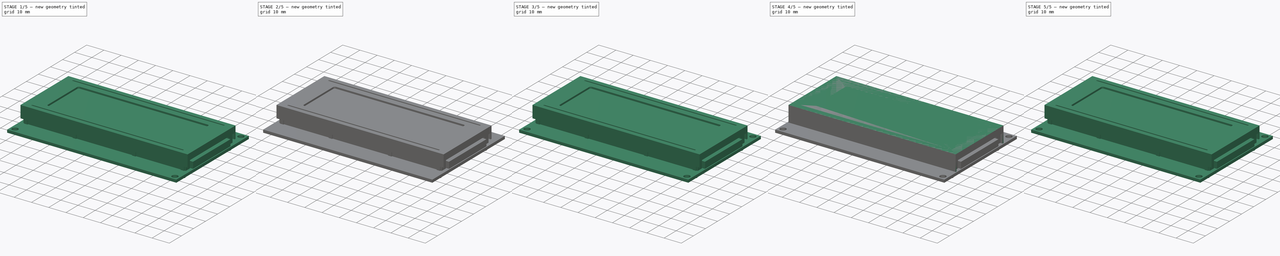
[diagram: build sequence overview — one tinted view per stage of 5, left to right]
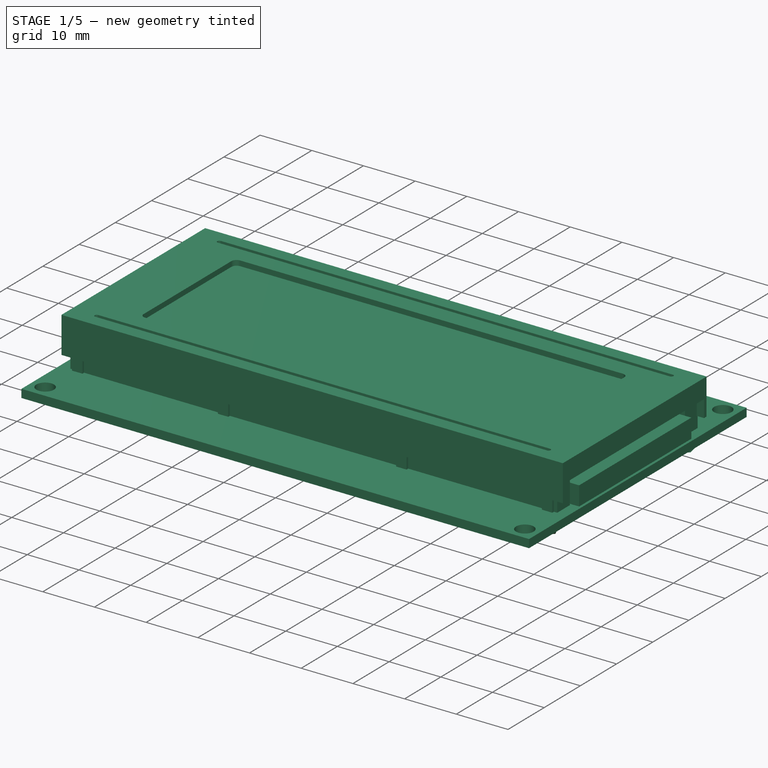
[diagram: stage 1 of 5 — iso view after this stage's code; geometry added in this stage tinted green]
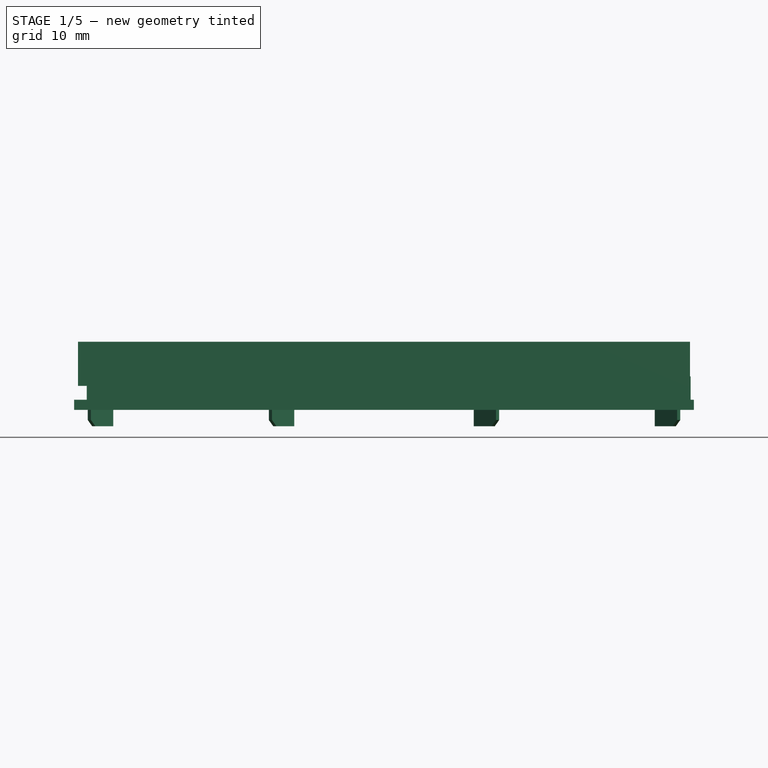
[diagram: stage 1 of 5 — front view after this stage's code; geometry added in this stage tinted green]
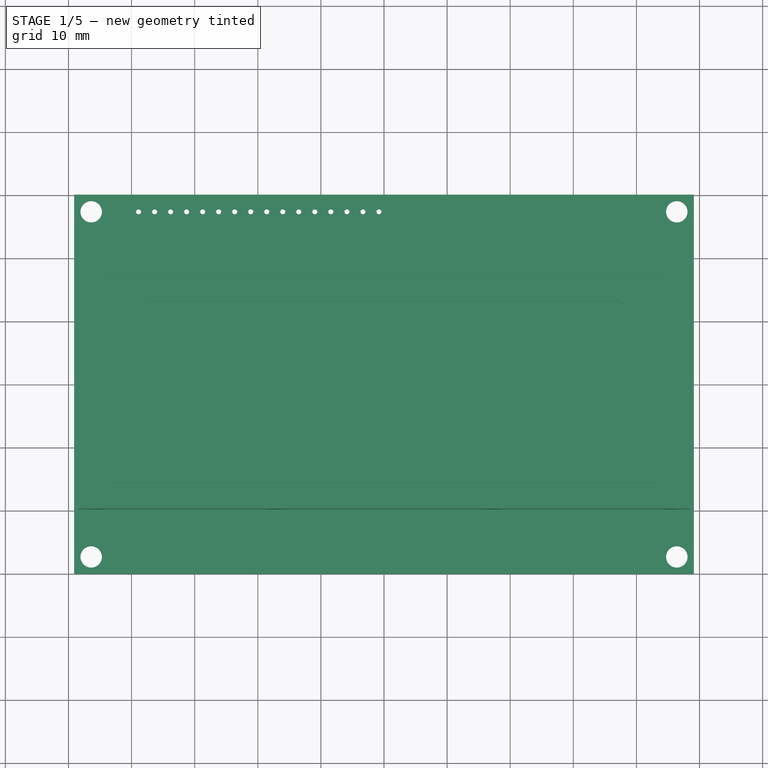
[diagram: stage 1 of 5 — top view after this stage's code; geometry added in this stage tinted green]
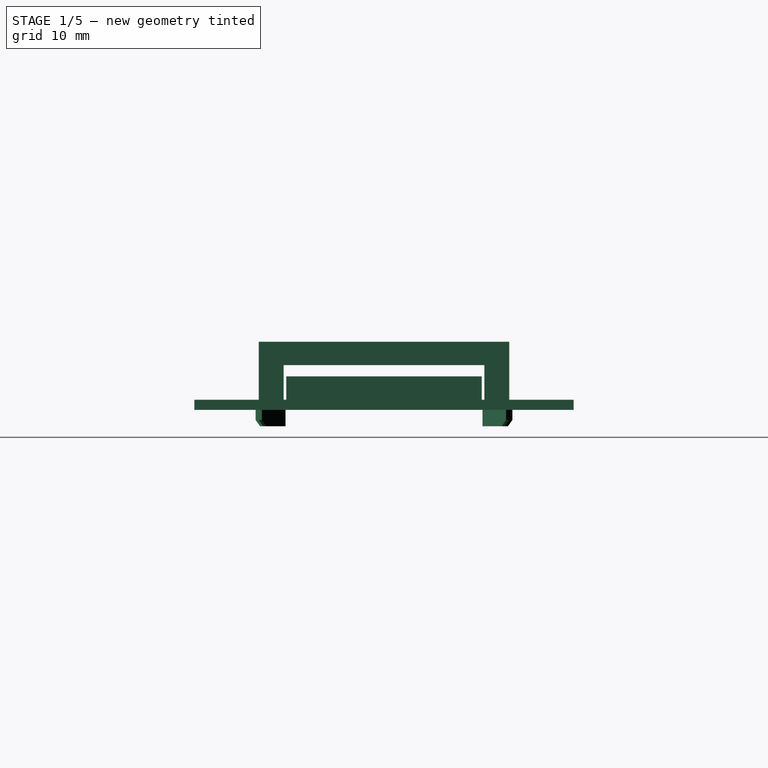
[diagram: stage 1 of 5 — right view after this stage's code; geometry added in this stage tinted green]
FCSTD DOCUMENT  (FreeCAD 0.14R3702 (Git))
Label: lcd-4x20-backlight
License: CC-BY 3.0
LicenseURL: http://creativecommons.org/licenses/by/3.0/
objects: Sketcher::SketchObject×14, Part::Feature×10, PartDesign::Pocket×8, PartDesign::Pad×6, App::DocumentObjectGroup×6, Part::MultiFuse×2, PartDesign::LinearPattern×1, Part::Mirroring×1, Part::Compound×1
note: 57 computed .brp shape members not serialized (recipe doc carries the construction recipe); baked Part::Feature solids carry a one-line shape summary decoded from their .brp

FEATURE [Sketcher::SketchObject] Sketch  label="frame-support-sketch"
  sketch-geometry (8):
    g0: LineSegment StartX=-47.1 StartY=19.4 StartZ=0 EndX=47.1 EndY=19.4 EndZ=0
    g1: LineSegment StartX=47.1 StartY=19.4 StartZ=0 EndX=47.1 EndY=15.9 EndZ=0
    g2: LineSegment StartX=47.1 StartY=15.9 StartZ=0 EndX=-47.1 EndY=15.9 EndZ=0
    g3: LineSegment StartX=-47.1 StartY=15.9 StartZ=0 EndX=-47.1 EndY=19.4 EndZ=0
    g4: LineSegment StartX=-47.1 StartY=-19.4 StartZ=0 EndX=47.1 EndY=-19.4 EndZ=0
    g5: LineSegment StartX=47.1 StartY=-19.4 StartZ=0 EndX=47.1 EndY=-15.9 EndZ=0
    g6: LineSegment StartX=47.1 StartY=-15.9 StartZ=0 EndX=-47.1 EndY=-15.9 EndZ=0
    g7: LineSegment StartX=-47.1 StartY=-15.9 StartZ=0 EndX=-47.1 EndY=-19.4 EndZ=0
  constraints (23):
    c: Coincident(g0,g1)
    c: Coincident(g1,g2)
    c: Coincident(g2,g3)
    c: Coincident(g3,g0)
    c: Horizontal(g0)
    c: Horizontal(g2)
    c: Vertical(g1)
    c: Vertical(g3)
    c: Symmetric(g0,g0,g-2)
    c: DistanceX(g0) = 94.2
    c: DistanceY(g1) = -3.5
    c: Coincident(g4,g5)
    c: Coincident(g5,g6)
    c: Coincident(g6,g7)
    c: Coincident(g7,g4)
    c: Horizontal(g4)
    c: Horizontal(g6)
    c: Vertical(g5)
    c: Vertical(g7)
    c: Symmetric(g6,g5,g-2)
    c: Symmetric(g2,g6,g-1)
    c: Symmetric(g4,g0,g-1)
    c: DistanceY(g0,g4) = -38.8
FEATURE [PartDesign::Pad] Pad  label="frame-support"
  Length = 8.5
  Length2 = 100
  Sketch = -> Sketch
  Type = 0
FEATURE [Sketcher::SketchObject] Sketch001  label="backlight-sketch"
  sketch-geometry (4):
    g0: LineSegment StartX=-40.6 StartY=15.5 StartZ=0 EndX=48.6 EndY=15.5 EndZ=0
    g1: LineSegment StartX=48.6 StartY=15.5 StartZ=0 EndX=48.6 EndY=-15.5 EndZ=0
    g2: LineSegment StartX=48.6 StartY=-15.5 StartZ=0 EndX=-40.6 EndY=-15.5 EndZ=0
    g3: LineSegment StartX=-40.6 StartY=-15.5 StartZ=0 EndX=-40.6 EndY=15.5 EndZ=0
  constraints (12):
    c: Coincident(g0,g1)
    c: Coincident(g1,g2)
    c: Coincident(g2,g3)
    c: Coincident(g3,g0)
    c: Horizontal(g0)
    c: Horizontal(g2)
    c: Vertical(g1)
    c: Vertical(g3)
    c: DistanceX(g-1,g1) = 48.6
    c: Symmetric(g0,g2,g-1)
    c: DistanceY(g-1,g0) = 15.5
    c: DistanceX(g-1,g0) = -40.6
FEATURE [PartDesign::Pad] Pad001  label="backlight"
  Length = 3.7
  Length2 = 100
  Sketch = -> Sketch001
  Type = 0
FEATURE [Part::Feature] Pad003003001  label="foot-1"
  Placement = pos=(-46.945,-19.355,-4.2) rot=(0.862856,0.357407,0.357407;1.71777rad)
  shape: bbox 4.031 x 4.031 x 2.6 mm, 7 faces (baked)
FEATURE [Part::Feature] Pad003003002  label="foot-002"
  Placement = pos=(-18.25,-19.85,-4.2) rot=(0.862856,0.357407,0.357407;1.71777rad)
  shape: bbox 4.031 x 4.031 x 2.6 mm, 7 faces (baked)
FEATURE [Part::Feature] Pad003003003  label="foot-003"
  Placement = pos=(46.45,-19.85,-4.2) rot=(0.281085,0.678598,0.678598;2.59356rad)
  shape: bbox 4.031 x 4.031 x 2.6 mm, 7 faces (baked)
FEATURE [Part::Feature] Pad003003004  label="foot-004"
  Placement = pos=(17.755,-19.645,-4.2) rot=(0.281085,0.678598,0.678598;2.59356rad)
  shape: bbox 4.031 x 4.031 x 2.6 mm, 7 faces (baked)
FEATURE [Part::MultiFuse] Fusion  label="front-feeth"
  Shapes = -> [Pad003003001,Pad003003002,Pad003003003,Pad003003004]
FEATURE [App::DocumentObjectGroup] Group003  label="feet-src"
  Group = -> [Pad003003,Fusion001]
FEATURE [Part::Feature] Fusion002  label="feet-final"
  shape: bbox 93.89 x 40.69 x 2.6 mm, 56 faces, 8 solids (baked)
FEATURE [App::DocumentObjectGroup] Group004  label="inner-parts-src"
  Group = -> [Pad,Pad001]
FEATURE [App::DocumentObjectGroup] Group005  label="src"
  Group = -> [Group,Group001,Group002,Group003,Group004]
FEATURE [Part::Feature] Pad003003005  label="frame-support001"
  shape: bbox 94.2 x 38.8 x 8.5 mm, 12 faces, 2 solids (baked)
FEATURE [Part::Feature] Pad003003006  label="backlight001"
  shape: bbox 89.2 x 31 x 3.7 mm, 6 faces (baked)
FEATURE [Part::Compound] Compound  label="lcd-4x20-backlight"
  Links = -> [Pad003003006,Pad003003005,Fusion002,LinearPattern001,Pad003001,Pocket005001]
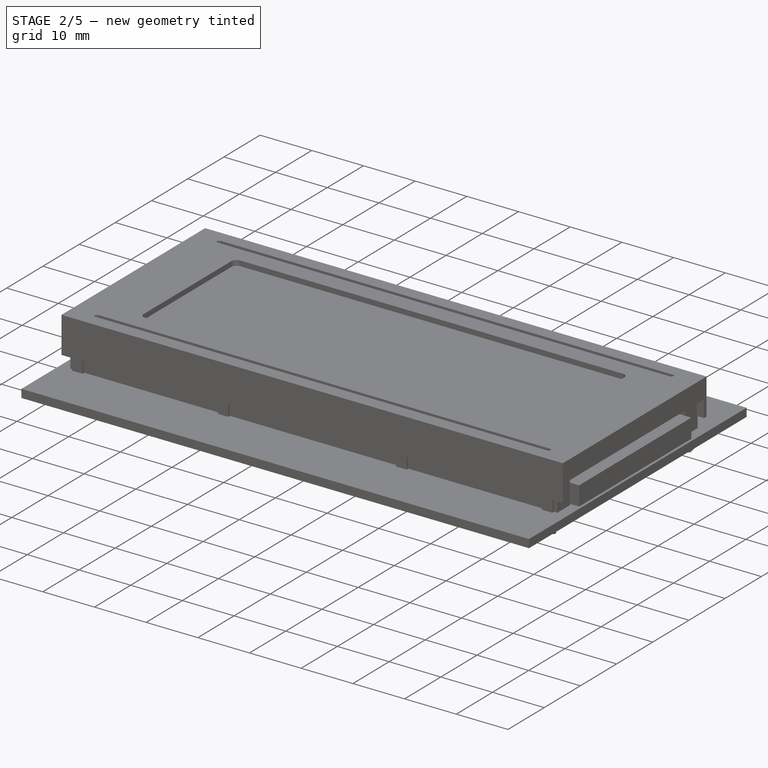
[diagram: stage 2 of 5 — iso view after this stage's code; geometry added in this stage tinted green]
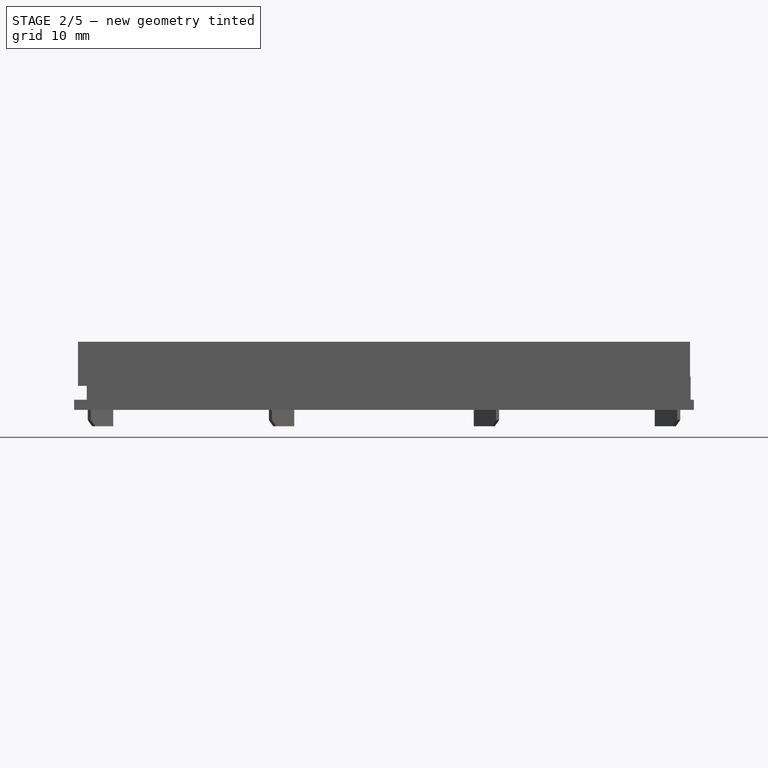
[diagram: stage 2 of 5 — front view after this stage's code; geometry added in this stage tinted green]
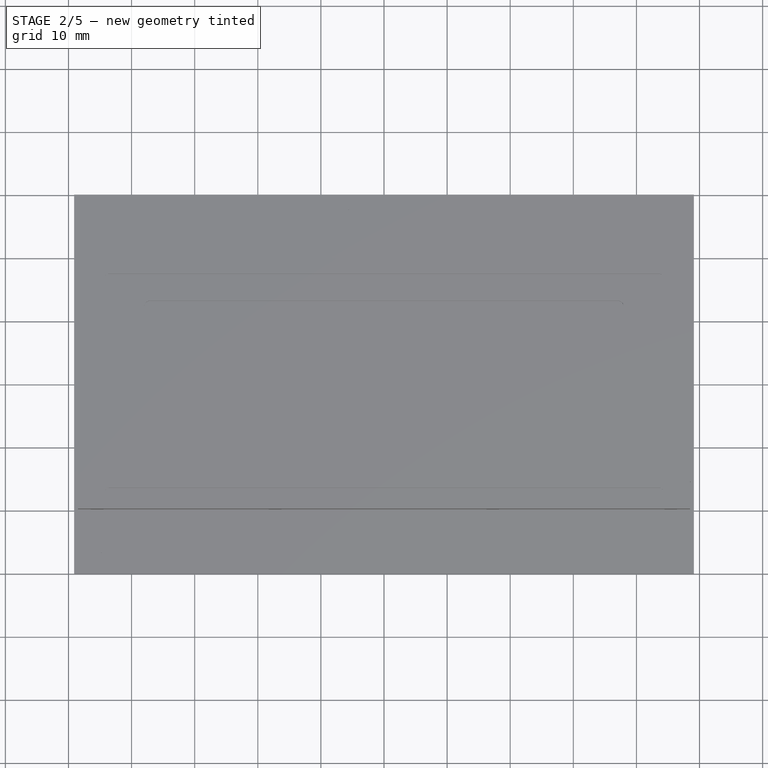
[diagram: stage 2 of 5 — top view after this stage's code; geometry added in this stage tinted green]
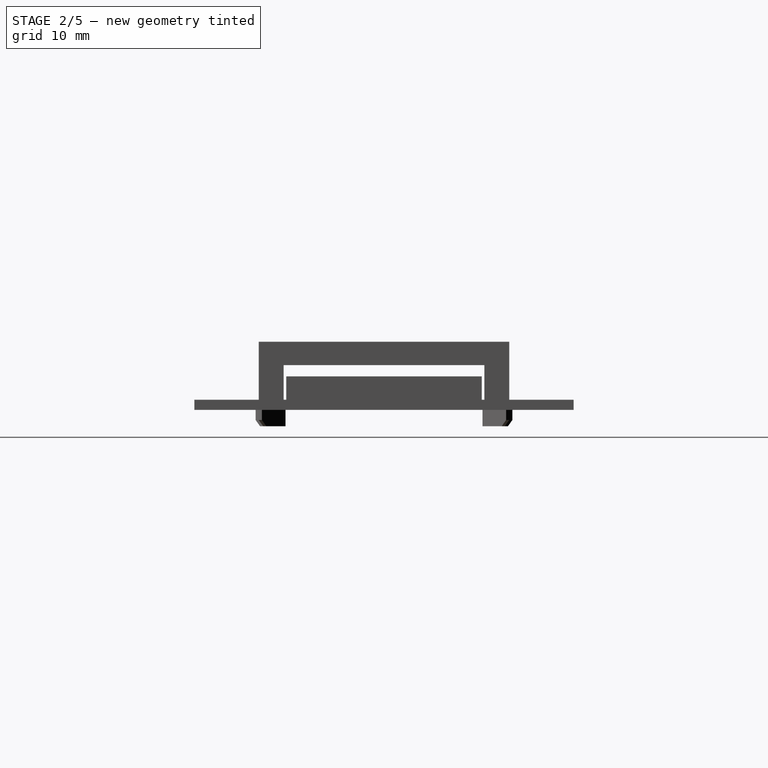
[diagram: stage 2 of 5 — right view after this stage's code; geometry added in this stage tinted green]
FEATURE [App::DocumentObjectGroup] Group001  label="screen-src"
  Group = -> [Pad003]
FEATURE [Part::Feature] Pad003001  label="screen-final"
  Placement = pos=(0,0,7.2) rot=(0,0,1;0rad)
  shape: bbox 78 x 28 x 1 mm, 6 faces (baked)
FEATURE [Sketcher::SketchObject] Sketch010  label="PCB-base-sketch"
  sketch-geometry (4):
    g0: LineSegment StartX=-49.1 StartY=30.05 StartZ=0 EndX=49.1 EndY=30.05 EndZ=0
    g1: LineSegment StartX=49.1 StartY=30.05 StartZ=0 EndX=49.1 EndY=-30.05 EndZ=0
    g2: LineSegment StartX=49.1 StartY=-30.05 StartZ=0 EndX=-49.1 EndY=-30.05 EndZ=0
    g3: LineSegment StartX=-49.1 StartY=-30.05 StartZ=0 EndX=-49.1 EndY=30.05 EndZ=0
  constraints (11):
    c: Coincident(g0,g1)
    c: Coincident(g1,g2)
    c: Coincident(g2,g3)
    c: Coincident(g3,g0)
    c: Horizontal(g0)
    c: Horizontal(g2)
    c: Vertical(g1)
    c: Vertical(g3)
    c: Symmetric(g0,g1,g-1)
    c: DistanceX(g0) = 98.2
    c: DistanceY(g1) = -60.1
FEATURE [PartDesign::Pad] Pad003002  label="pcb-base"
  Length = 1.6
  Length2 = 100
  Reversed = true
  Sketch = -> Sketch010
  Type = 0
FEATURE [App::DocumentObjectGroup] Group002  label="pcb-src"
  Group = -> [Pad003002,Pocket005002,Pocket005003,LinearPattern]
FEATURE [Part::Feature] LinearPattern001  label="pcb-final"
  shape: bbox 98.2 x 60.1 x 1.6 mm, 26 faces (baked)
FEATURE [Sketcher::SketchObject] Sketch013  label="foot-master-sketch"
  Placement = pos=(0,0,0) rot=(-1,0,0;4.71239rad)
  sketch-geometry (5):
    g0: LineSegment StartX=0 StartY=2.6 StartZ=0 EndX=0 EndY=1 EndZ=0
    g1: LineSegment StartX=0 StartY=1 StartZ=0 EndX=1 EndY=0 EndZ=0
    g2: LineSegment StartX=1 StartY=0 StartZ=0 EndX=5 EndY=0 EndZ=0
    g3: LineSegment StartX=5 StartY=0 StartZ=0 EndX=5 EndY=2.6 EndZ=0
    g4: LineSegment StartX=5 StartY=2.6 StartZ=0 EndX=0 EndY=2.6 EndZ=0
  constraints (15):
    c: Vertical(g0)
    c: Coincident(g0,g1)
    c: Coincident(g1,g2)
    c: Horizontal(g2)
    c: Coincident(g2,g3)
    c: Vertical(g3)
    c: Coincident(g3,g4)
    c: Coincident(g4,g0)
    c: Horizontal(g4)
    c: DistanceX(g4) = -5
    c: Angle(g2,g1) = 2.35619
    c: PointOnObject(g0,g-2)
    c: PointOnObject(g1,g-1)
    c: DistanceY(g3) = 2.6
    c: DistanceX(g-1,g1) = 1
FEATURE [PartDesign::Pad] Pad003003  label="foot-master"
  Length = 0.7
  Length2 = 100
  Placement = pos=(0,0,0) rot=(-1,0,0;4.71239rad)
  Sketch = -> Sketch013
  Type = 0
FEATURE [Part::Mirroring] Part__Mirroring  label="rear-feet"
  Base = (0,0,0)
  Normal = (0,1,0)
  Source = -> Fusion
FEATURE [Part::MultiFuse] Fusion001  label="feet"
  Shapes = -> [Part__Mirroring,Fusion]
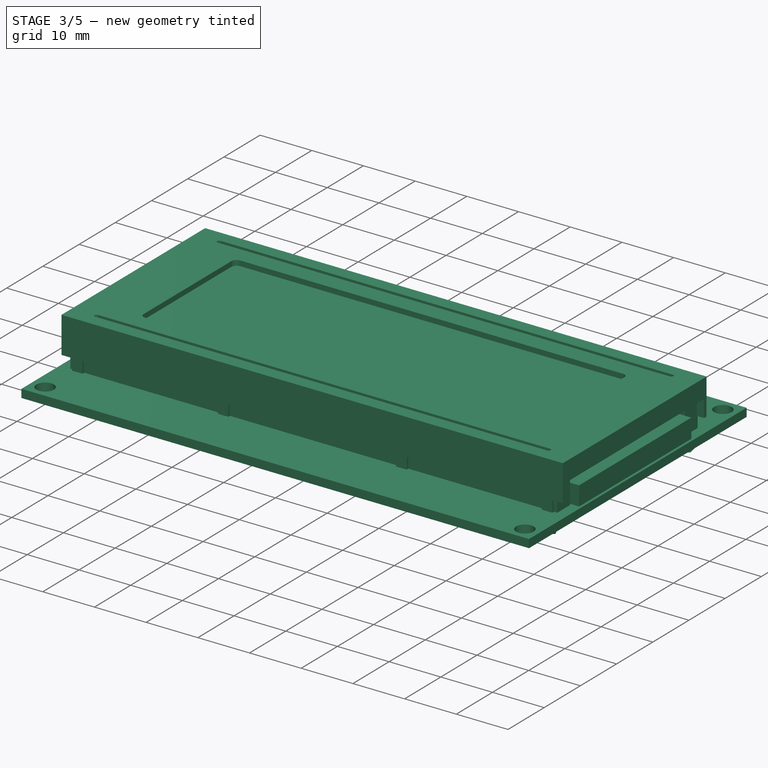
[diagram: stage 3 of 5 — iso view after this stage's code; geometry added in this stage tinted green]
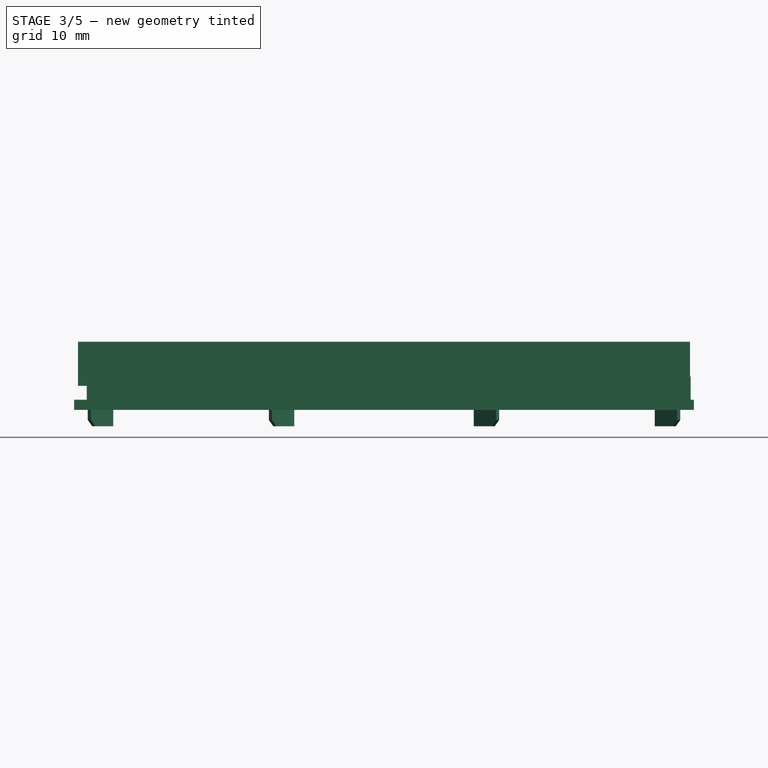
[diagram: stage 3 of 5 — front view after this stage's code; geometry added in this stage tinted green]
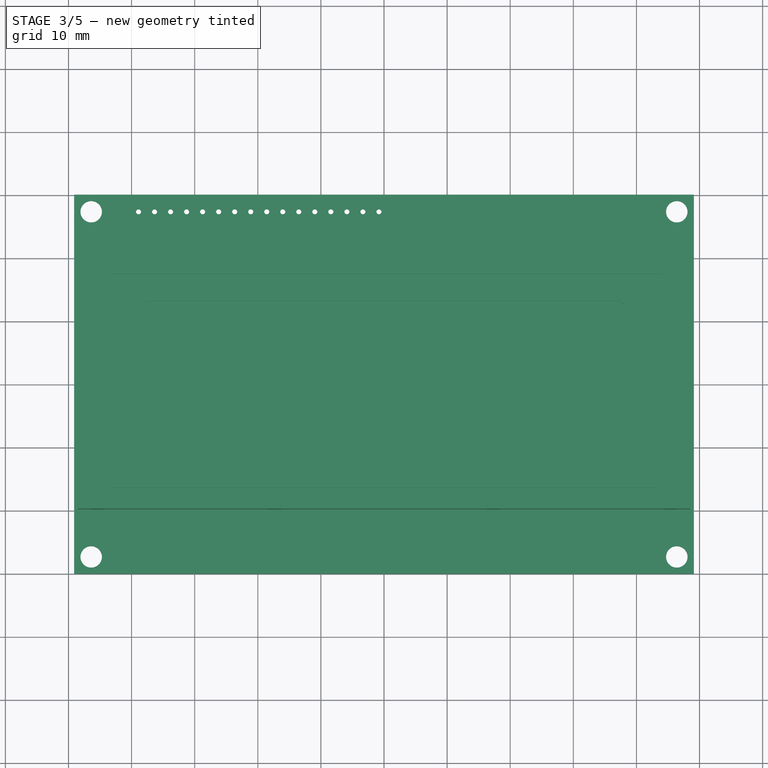
[diagram: stage 3 of 5 — top view after this stage's code; geometry added in this stage tinted green]
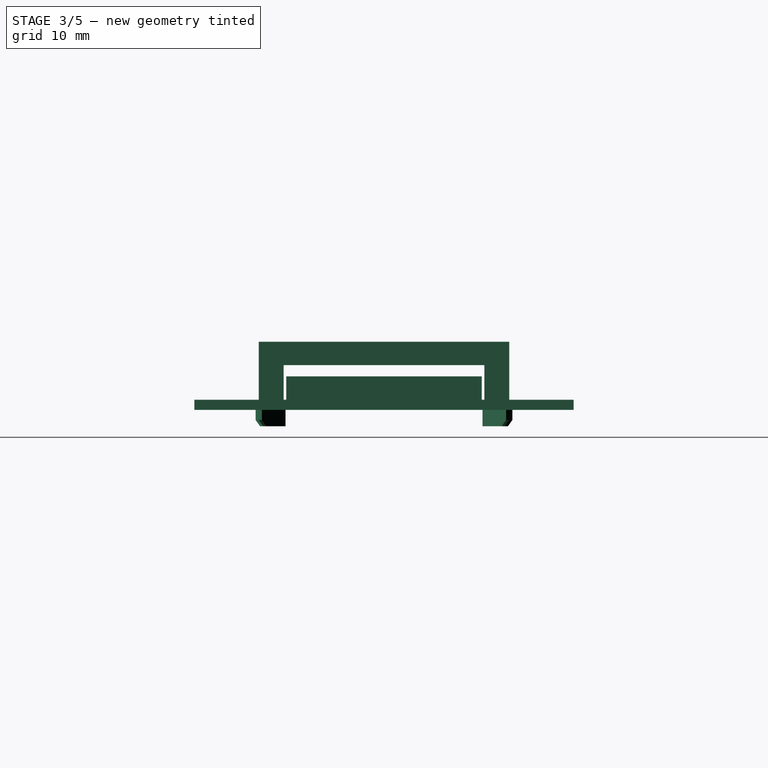
[diagram: stage 3 of 5 — right view after this stage's code; geometry added in this stage tinted green]
FEATURE [Sketcher::SketchObject] Sketch011  label="drills-sketch"
  ExternalGeometry = -> [Pad003002]
  Support = -> Pad003002 [Face5]
  sketch-geometry (4):
    g0: Circle CenterX=-46.4 CenterY=27.35 CenterZ=0 NormalX=0 NormalY=0 NormalZ=1 Radius=1.7
    g1: Circle CenterX=46.4 CenterY=27.35 CenterZ=0 NormalX=0 NormalY=0 NormalZ=1 Radius=1.7
    g2: Circle CenterX=-46.4 CenterY=-27.35 CenterZ=0 NormalX=0 NormalY=0 NormalZ=1 Radius=1.7
    g3: Circle CenterX=46.4 CenterY=-27.35 CenterZ=0 NormalX=0 NormalY=0 NormalZ=1 Radius=1.7
  constraints (9):
    c: Radius(g0) = 1.7
    c: DistanceX(g0,g-3) = -2.7
    c: DistanceY(g0,g-3) = 2.7
    c: Symmetric(g0,g1,g-2)
    c: Equal(g1,g3)
    c: Equal(g3,g2)
    c: Equal(g2,g0)
    c: Symmetric(g0,g2,g-1)
    c: Symmetric(g2,g3,g-2)
FEATURE [PartDesign::Pocket] Pocket005002  label="drills"
  Length = 5
  Sketch = -> Sketch011
  Type = 1
FEATURE [Sketcher::SketchObject] Sketch012  label="connector-drill-master-sketch"
  ExternalGeometry = -> [Pocket005002]
  Support = -> Pocket005002 [Face4]
  sketch-geometry (1):
    g0: Circle CenterX=-38.9 CenterY=27.35 CenterZ=0 NormalX=0 NormalY=0 NormalZ=1 Radius=0.4
  constraints (3):
    c: Radius(g0) = 0.4
    c: DistanceX(g-3,g0) = 10.2
    c: DistanceY(g0,g-3) = 2.7
FEATURE [PartDesign::Pocket] Pocket005003  label="connector-drill-master"
  Length = 5
  Sketch = -> Sketch012
  Type = 1
FEATURE [PartDesign::LinearPattern] LinearPattern
  Direction = -> Sketch012 [H_Axis]
  Length = 38.1
  Occurrences = 16
  Originals = -> [Pocket005003]
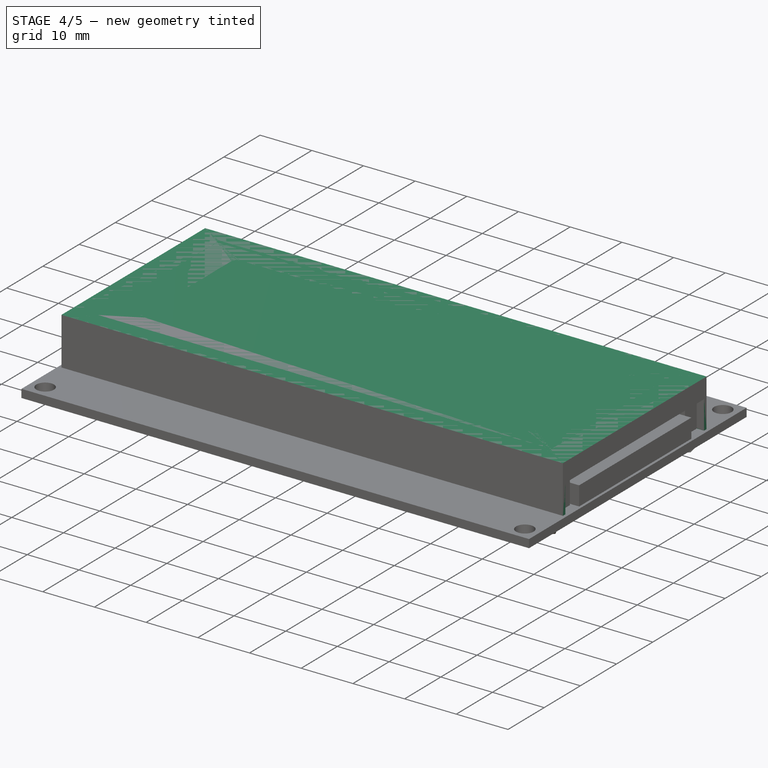
[diagram: stage 4 of 5 — iso view after this stage's code; geometry added in this stage tinted green]
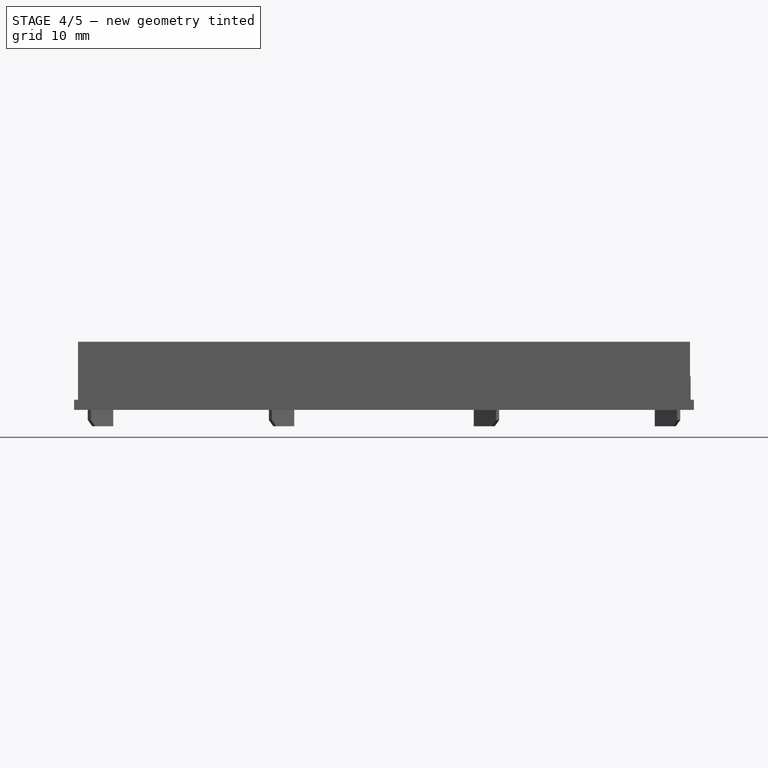
[diagram: stage 4 of 5 — front view after this stage's code; geometry added in this stage tinted green]
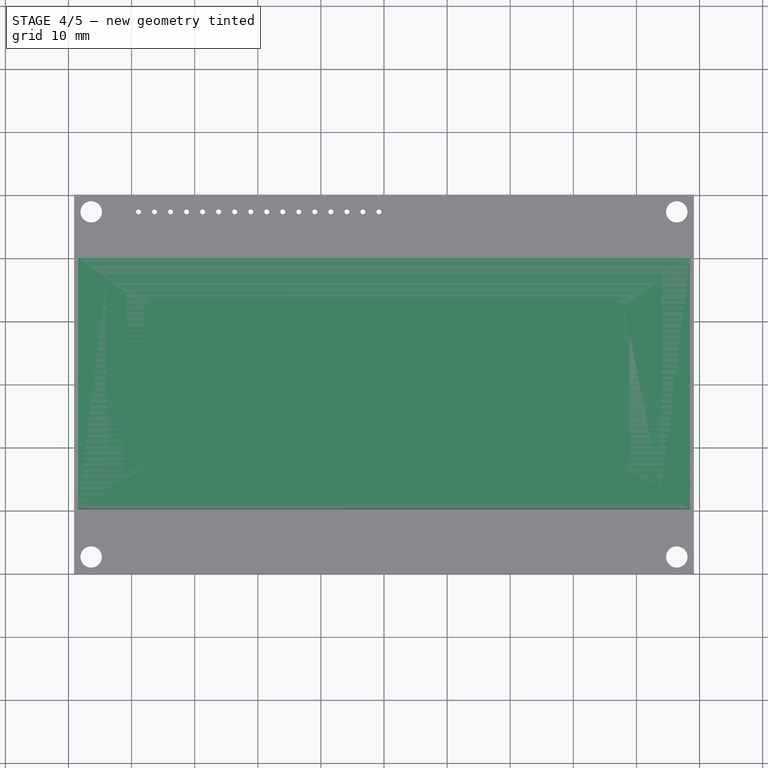
[diagram: stage 4 of 5 — top view after this stage's code; geometry added in this stage tinted green]
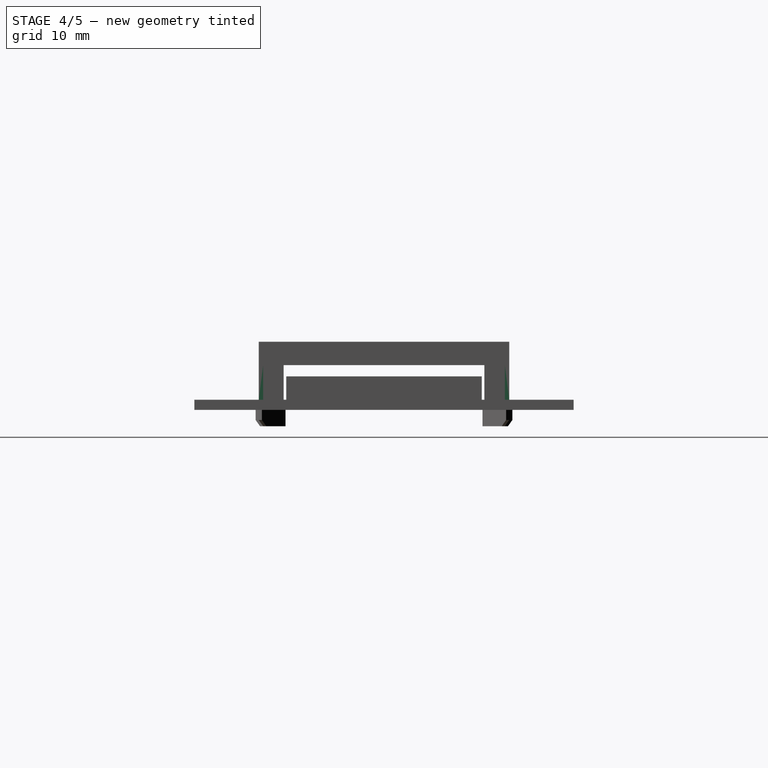
[diagram: stage 4 of 5 — right view after this stage's code; geometry added in this stage tinted green]
FEATURE [Sketcher::SketchObject] Sketch002  label="metal-cover-main-sketch"
  sketch-geometry (4):
    g0: LineSegment StartX=-48.5 StartY=19.85 StartZ=0 EndX=48.5 EndY=19.85 EndZ=0
    g1: LineSegment StartX=48.5 StartY=19.85 StartZ=0 EndX=48.5 EndY=-19.85 EndZ=0
    g2: LineSegment StartX=48.5 StartY=-19.85 StartZ=0 EndX=-48.5 EndY=-19.85 EndZ=0
    g3: LineSegment StartX=-48.5 StartY=-19.85 StartZ=0 EndX=-48.5 EndY=19.85 EndZ=0
  constraints (11):
    c: Coincident(g0,g1)
    c: Coincident(g1,g2)
    c: Coincident(g2,g3)
    c: Coincident(g3,g0)
    c: Horizontal(g0)
    c: Horizontal(g2)
    c: Vertical(g1)
    c: Vertical(g3)
    c: Symmetric(g0,g1,g-1)
    c: DistanceX(g0) = 97
    c: DistanceY(g1) = -39.7
FEATURE [PartDesign::Pad] Pad002  label="metal-cover"
  Length = 9.2
  Length2 = 100
  Sketch = -> Sketch002
  Type = 0
FEATURE [Sketcher::SketchObject] Sketch003  label="bottom-cutout-1-sketch"
  ExternalGeometry = -> [Pad002]
  Placement = pos=(0,0,0) rot=(1,0,0;3.14159rad)
  Support = -> Pad002 [Face5]
  sketch-geometry (5):
    g0: LineSegment StartX=-47.8 StartY=19.15 StartZ=0 EndX=47.8 EndY=19.15 EndZ=0
    g1: LineSegment StartX=47.8 StartY=19.15 StartZ=0 EndX=47.8 EndY=-19.15 EndZ=0
    g2: LineSegment StartX=47.8 StartY=-19.15 StartZ=0 EndX=-47.8 EndY=-19.15 EndZ=0
    g3: LineSegment StartX=-47.8 StartY=-19.15 StartZ=0 EndX=-47.8 EndY=19.15 EndZ=0
    g4: LineSegment [constr] StartX=-48.5 StartY=19.85 StartZ=0 EndX=-47.8 EndY=19.15 EndZ=0
  constraints (13):
    c: Coincident(g0,g1)
    c: Coincident(g1,g2)
    c: Coincident(g2,g3)
    c: Coincident(g3,g0)
    c: Horizontal(g0)
    c: Horizontal(g2)
    c: Vertical(g1)
    c: Vertical(g3)
    c: Symmetric(g0,g1,g-1)
    c: Coincident(g4,g-3)
    c: Coincident(g4,g0)
    c: Angle(g4,g-3) = 0.785398
    c: DistanceX(g0,g4) = -0.7
FEATURE [PartDesign::Pocket] Pocket  label="bottom-cutout-1"
  Length = 8.2
  Sketch = -> Sketch003
  Type = 0
FEATURE [Sketcher::SketchObject] Sketch004  label="side-cutout-2-sketch"
  ExternalGeometry = -> [Pocket]
  Placement = pos=(48.5,0,0) rot=(0.57735,0.57735,0.57735;2.0944rad)
  Support = -> Pocket [Face3]
  sketch-geometry (7):
    g0: LineSegment StartX=-19.15 StartY=5.5 StartZ=0 EndX=19.15 EndY=5.5 EndZ=0
    g1: LineSegment StartX=19.15 StartY=5.5 StartZ=0 EndX=19.15 EndY=0 EndZ=0
    g2: LineSegment [constr] StartX=19.15 StartY=0 StartZ=0 EndX=-19.15 EndY=0 EndZ=0
    g3: LineSegment StartX=-19.15 StartY=0 StartZ=0 EndX=-19.15 EndY=5.5 EndZ=0
    g4: LineSegment StartX=19.15 StartY=0 StartZ=0 EndX=19.15 EndY=-1 EndZ=0
    g5: LineSegment StartX=19.15 StartY=-1 StartZ=0 EndX=-19.15 EndY=-1 EndZ=0
    g6: LineSegment StartX=-19.15 StartY=-1 StartZ=0 EndX=-19.15 EndY=0 EndZ=0
  constraints (19):
    c: Coincident(g0,g1)
    c: Coincident(g1,g2)
    c: Coincident(g2,g3)
    c: Coincident(g3,g0)
    c: Horizontal(g0)
    c: Horizontal(g2)
    c: Vertical(g1)
    c: Vertical(g3)
    c: Symmetric(g0,g0,g-2)
    c: DistanceY(g-3,g0) = -3.7
    c: Coincident(g2,g-4)
    c: Coincident(g4,g5)
    c: Coincident(g5,g6)
    c: Horizontal(g5)
    c: Vertical(g4)
    c: Vertical(g6)
    c: Coincident(g6,g2)
    c: Coincident(g4,g1)
    c: DistanceY(g4) = -1
FEATURE [PartDesign::Pocket] Pocket001  label="side-cutout-2"
  Length = 5
  Sketch = -> Sketch004
  Type = 1
FEATURE [App::DocumentObjectGroup] Group  label="metal-cover-src"
  Group = -> [Pad002,Pocket,Pocket001,Pocket002,Pocket003,Pocket004,Pocket005]
FEATURE [Part::Feature] Pocket005001  label="metal-cover-final"
  shape: bbox 97 x 39.7 x 9.2 mm, 70 faces (baked)
FEATURE [Sketcher::SketchObject] Sketch009  label="screen-sketch"
  Placement = pos=(0,0,7.2) rot=(0,0,1;0rad)
  sketch-geometry (4):
    g0: LineSegment StartX=-39 StartY=14 StartZ=0 EndX=39 EndY=14 EndZ=0
    g1: LineSegment StartX=39 StartY=14 StartZ=0 EndX=39 EndY=-14 EndZ=0
    g2: LineSegment StartX=39 StartY=-14 StartZ=0 EndX=-39 EndY=-14 EndZ=0
    g3: LineSegment StartX=-39 StartY=-14 StartZ=0 EndX=-39 EndY=14 EndZ=0
  constraints (11):
    c: Coincident(g0,g1)
    c: Coincident(g1,g2)
    c: Coincident(g2,g3)
    c: Coincident(g3,g0)
    c: Horizontal(g0)
    c: Horizontal(g2)
    c: Vertical(g1)
    c: Vertical(g3)
    c: Symmetric(g0,g1,g-1)
    c: DistanceX(g0) = 78
    c: DistanceY(g1) = -28
FEATURE [PartDesign::Pad] Pad003  label="screen"
  Length = 1
  Length2 = 100
  Placement = pos=(0,0,7.2) rot=(0,0,1;0rad)
  Sketch = -> Sketch009
  Type = 0
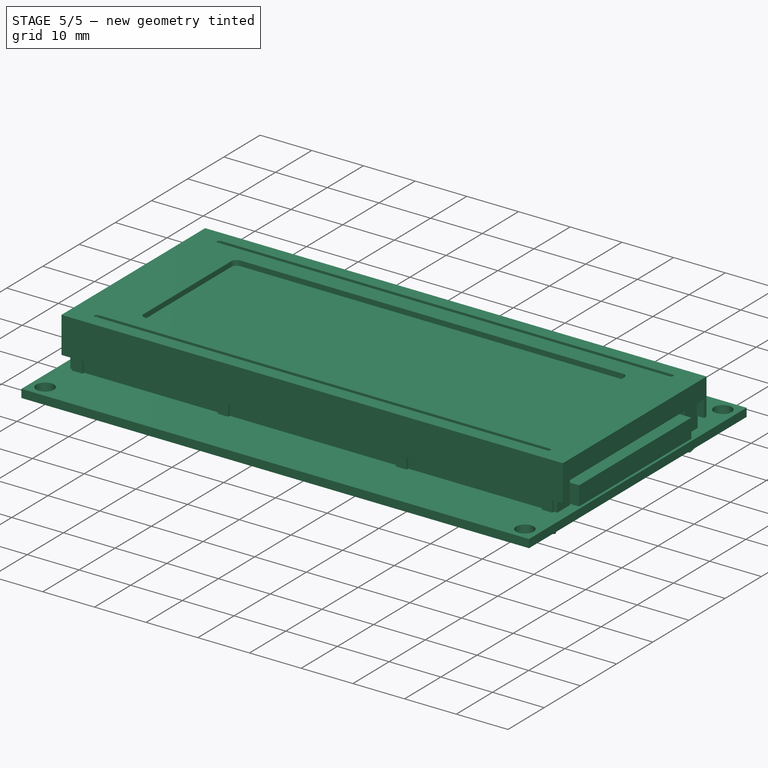
[diagram: stage 5 of 5 — iso view after this stage's code; geometry added in this stage tinted green]
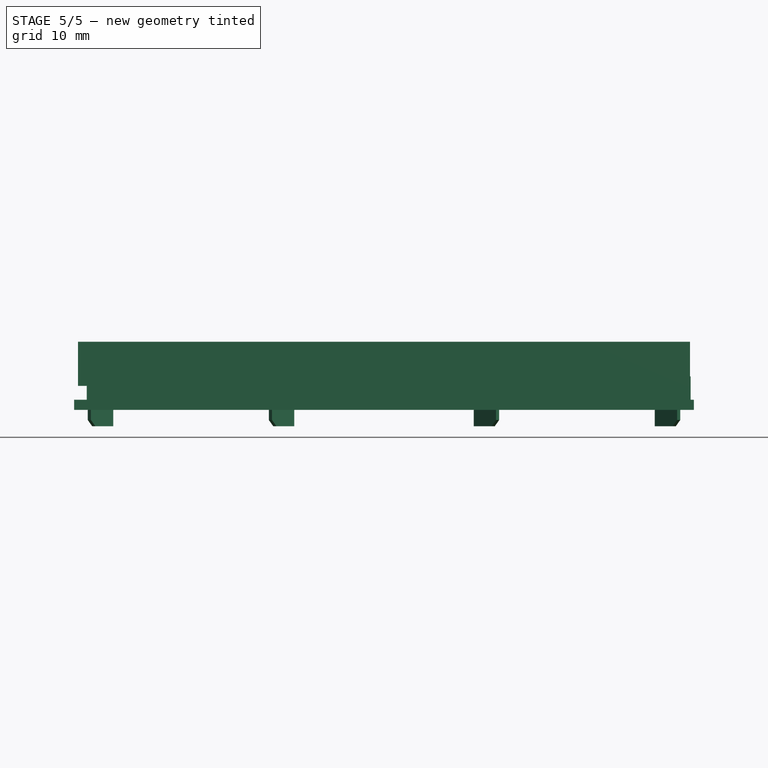
[diagram: stage 5 of 5 — front view after this stage's code; geometry added in this stage tinted green]
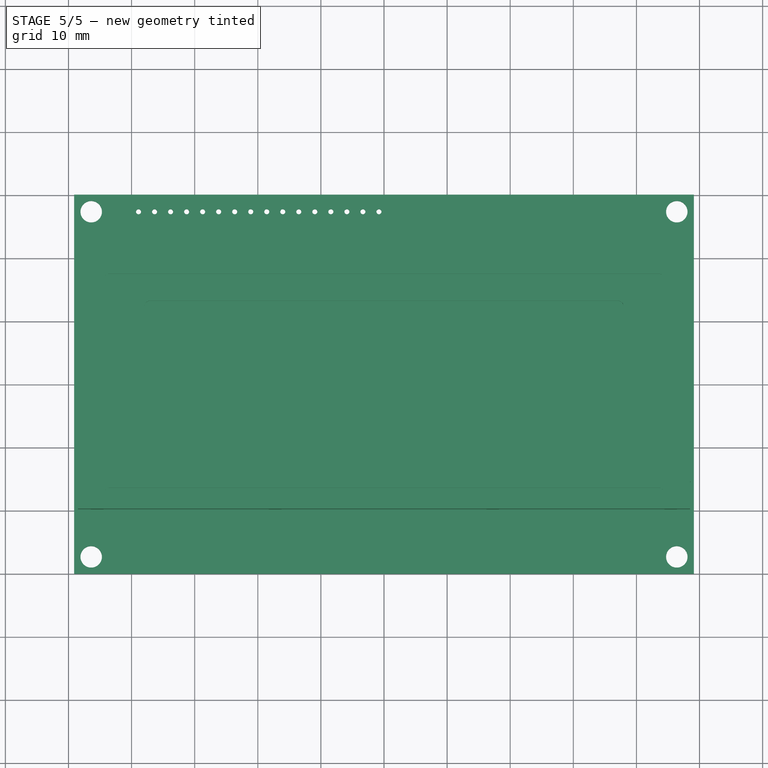
[diagram: stage 5 of 5 — top view after this stage's code; geometry added in this stage tinted green]
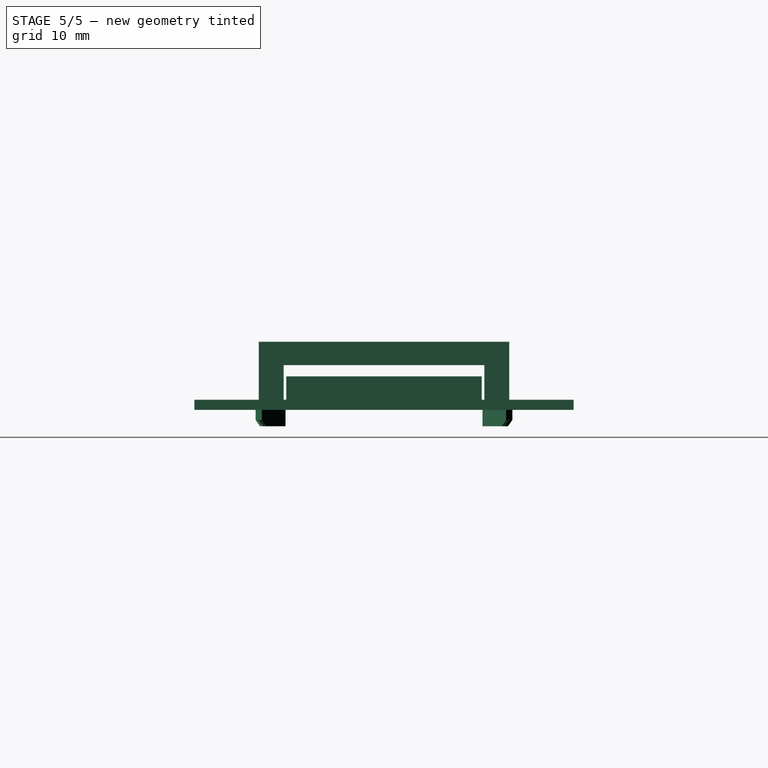
[diagram: stage 5 of 5 — right view after this stage's code; geometry added in this stage tinted green]
FEATURE [Sketcher::SketchObject] Sketch005  label="front-cutout-3-sketch"
  ExternalGeometry = -> [Pocket001]
  Placement = pos=(0,-19.85,0) rot=(1,0,0;1.5708rad)
  Support = -> Pocket001 [Face8]
  sketch-geometry (21):
    g0: LineSegment [constr] StartX=-48.5 StartY=2.2 StartZ=0 EndX=48.5 EndY=2.2 EndZ=0
    g1: LineSegment StartX=-16.25 StartY=2.2 StartZ=0 EndX=16.25 EndY=2.2 EndZ=0
    g2: LineSegment StartX=16.25 StartY=2.2 StartZ=0 EndX=16.25 EndY=-1 EndZ=0
    g3: LineSegment StartX=16.25 StartY=-1 StartZ=0 EndX=-16.25 EndY=-1 EndZ=0
    g4: LineSegment StartX=-16.25 StartY=-1 StartZ=0 EndX=-16.25 EndY=2.2 EndZ=0
    g5: LineSegment StartX=-44.45 StartY=2.2 StartZ=0 EndX=-18.25 EndY=2.2 EndZ=0
    g6: LineSegment StartX=-18.25 StartY=2.2 StartZ=0 EndX=-18.25 EndY=-1 EndZ=0
    g7: LineSegment StartX=-18.25 StartY=-1 StartZ=0 EndX=-44.45 EndY=-1 EndZ=0
    g8: LineSegment StartX=-44.45 StartY=-1 StartZ=0 EndX=-44.45 EndY=2.2 EndZ=0
    g9: LineSegment StartX=-51.45 StartY=2.2 StartZ=0 EndX=-46.45 EndY=2.2 EndZ=0
    g10: LineSegment StartX=-46.45 StartY=2.2 StartZ=0 EndX=-46.45 EndY=-1 EndZ=0
    g11: LineSegment StartX=-46.45 StartY=-1 StartZ=0 EndX=-51.45 EndY=-1 EndZ=0
    g12: LineSegment StartX=-51.45 StartY=-1 StartZ=0 EndX=-51.45 EndY=2.2 EndZ=0
    g13: LineSegment StartX=18.25 StartY=2.2 StartZ=0 EndX=44.45 EndY=2.2 EndZ=0
    g14: LineSegment StartX=44.45 StartY=2.2 StartZ=0 EndX=44.45 EndY=-1 EndZ=0
    g15: LineSegment StartX=44.45 StartY=-1 StartZ=0 EndX=18.25 EndY=-1 EndZ=0
    g16: LineSegment StartX=18.25 StartY=-1 StartZ=0 EndX=18.25 EndY=2.2 EndZ=0
    g17: LineSegment StartX=46.45 StartY=2.2 StartZ=0 EndX=51.45 EndY=2.2 EndZ=0
    g18: LineSegment StartX=51.45 StartY=2.2 StartZ=0 EndX=51.45 EndY=-1 EndZ=0
    g19: LineSegment StartX=51.45 StartY=-1 StartZ=0 EndX=46.45 EndY=-1 EndZ=0
    g20: LineSegment StartX=46.45 StartY=-1 StartZ=0 EndX=46.45 EndY=2.2 EndZ=0
  constraints (62):
    c: Horizontal(g0)
    c: PointOnObject(g0,g-4)
    c: Symmetric(g0,g0,g-2)
    c: DistanceY(g0,g-4) = 7
    c: Coincident(g1,g2)
    c: Coincident(g2,g3)
    c: Coincident(g3,g4)
    c: Coincident(g4,g1)
    c: Horizontal(g1)
    c: Horizontal(g3)
    c: Vertical(g2)
    c: Vertical(g4)
    c: PointOnObject(g1,g0)
    c: Symmetric(g1,g1,g-2)
    c: DistanceX(g1,g1) = 32.5
    c: Coincident(g5,g6)
    c: Coincident(g6,g7)
    c: Coincident(g7,g8)
    c: Coincident(g8,g5)
    c: Horizontal(g5)
    c: Horizontal(g7)
    c: Vertical(g6)
    c: Vertical(g8)
    c: PointOnObject(g5,g0)
    c: DistanceX(g5,g5) = 26.2
    c: DistanceX(g5,g1) = 2
    c: PointOnObject(g6,g3)
    c: Coincident(g9,g10)
    c: Coincident(g10,g11)
    c: Coincident(g11,g12)
    c: Coincident(g12,g9)
    c: Horizontal(g9)
    c: Horizontal(g11)
    c: Vertical(g10)
    c: Vertical(g12)
    c: PointOnObject(g9,g0)
    c: DistanceX(g5,g9) = -2
    c: PointOnObject(g10,g7)
    c: DistanceY(g11,g-4) = 1
    c: DistanceX(g11,g10) = 5
    c: Coincident(g13,g14)
    c: Coincident(g14,g15)
    c: Coincident(g15,g16)
    c: Coincident(g16,g13)
    c: Horizontal(g13)
    c: Horizontal(g15)
    c: Vertical(g14)
    c: Vertical(g16)
    c: Symmetric(g13,g5,g-2)
    c: PointOnObject(g15,g3)
    c: Symmetric(g13,g5,g-2)
    c: Coincident(g17,g18)
    c: Coincident(g18,g19)
    c: Coincident(g19,g20)
    c: Coincident(g20,g17)
    c: Horizontal(g17)
    c: Horizontal(g19)
    c: Vertical(g18)
    c: Vertical(g20)
    c: Symmetric(g17,g9,g-2)
    c: PointOnObject(g19,g15)
    c: Symmetric(g17,g9,g-2)
FEATURE [PartDesign::Pocket] Pocket002  label="front-cutout-3"
  Length = 5
  Sketch = -> Sketch005
  Type = 1
FEATURE [Sketcher::SketchObject] Sketch006  label="top-cutout-4-sketch"
  Placement = pos=(0,0,9.2) rot=(0,0,1;0rad)
  Support = -> Pocket002 [Face20]
  sketch-geometry (8):
    g0: LineSegment StartX=-37 StartY=13.1 StartZ=0 EndX=37 EndY=13.1 EndZ=0
    g1: LineSegment StartX=38 StartY=12.1 StartZ=0 EndX=38 EndY=-12.1 EndZ=0
    g2: LineSegment StartX=37 StartY=-13.1 StartZ=0 EndX=-37 EndY=-13.1 EndZ=0
    g3: LineSegment StartX=-38 StartY=-12.1 StartZ=0 EndX=-38 EndY=12.1 EndZ=0
    g4: ArcOfCircle CenterX=-37 CenterY=12.1 CenterZ=0 NormalX=0 NormalY=0 NormalZ=1 Radius=1 StartAngle=1.5708 EndAngle=3.14159
    g5: ArcOfCircle CenterX=37 CenterY=12.1 CenterZ=0 NormalX=0 NormalY=0 NormalZ=1 Radius=1 StartAngle=0 EndAngle=1.5708
    g6: ArcOfCircle CenterX=37 CenterY=-12.1 CenterZ=0 NormalX=0 NormalY=0 NormalZ=1 Radius=1 StartAngle=4.71239 EndAngle=6.28319
    g7: ArcOfCircle CenterX=-37 CenterY=-12.1 CenterZ=0 NormalX=0 NormalY=0 NormalZ=1 Radius=1 StartAngle=3.14159 EndAngle=4.71239
  constraints (19):
    c: Horizontal(g0)
    c: Horizontal(g2)
    c: Vertical(g1)
    c: Vertical(g3)
    c: Tangent(g0,g4)
    c: Tangent(g3,g4)
    c: Tangent(g0,g5)
    c: Tangent(g1,g5)
    c: Tangent(g1,g6)
    c: Tangent(g2,g6)
    c: Tangent(g2,g7)
    c: Tangent(g3,g7)
    c: Radius(g4) = 1
    c: Equal(g4,g7)
    c: Equal(g7,g5)
    c: Equal(g5,g6)
    c: Symmetric(g4,g6,g-1)
    c: DistanceY(g0,g2) = -26.2
    c: DistanceX(g3,g1) = 76
FEATURE [PartDesign::Pocket] Pocket003  label="top-cutout-4"
  Length = 5
  Sketch = -> Sketch006
  Type = 1
FEATURE [Sketcher::SketchObject] Sketch007  label="top-slots-sketch"
  ExternalGeometry = -> [Pocket003]
  Placement = pos=(0,0,9.2) rot=(0,0,1;0rad)
  Support = -> Pocket003 [Face20]
  sketch-geometry (8):
    g0: ArcOfCircle CenterX=-43.7 CenterY=16.95 CenterZ=0 NormalX=0 NormalY=0 NormalZ=1 Radius=0.4 StartAngle=1.57079 EndAngle=4.71239
    g1: ArcOfCircle CenterX=43.7 CenterY=16.95 CenterZ=0 NormalX=0 NormalY=0 NormalZ=1 Radius=0.4 StartAngle=4.7124 EndAngle=7.85398
    g2: LineSegment StartX=-43.7 StartY=16.55 StartZ=0 EndX=43.7 EndY=16.55 EndZ=0
    g3: LineSegment StartX=-43.7 StartY=17.35 StartZ=0 EndX=43.7 EndY=17.35 EndZ=0
    g4: ArcOfCircle CenterX=-43.7 CenterY=-16.95 CenterZ=0 NormalX=0 NormalY=0 NormalZ=1 Radius=0.4 StartAngle=1.5708 EndAngle=4.71239
    g5: ArcOfCircle CenterX=43.7 CenterY=-16.95 CenterZ=0 NormalX=0 NormalY=0 NormalZ=1 Radius=0.4 StartAngle=4.71238 EndAngle=7.85399
    g6: LineSegment StartX=-43.7 StartY=-17.35 StartZ=0 EndX=43.7 EndY=-17.35 EndZ=0
    g7: LineSegment StartX=-43.7 StartY=-16.55 StartZ=0 EndX=43.7 EndY=-16.55 EndZ=0
  constraints (26):
    c: Tangent(g0,g2)
    c: Tangent(g0,g3)
    c: Tangent(g1,g2)
    c: Tangent(g1,g3)
    c: Coincident(g0,g3)
    c: Coincident(g0,g2)
    c: Coincident(g2,g1)
    c: Coincident(g3,g1)
    c: Horizontal(g2)
    c: Radius(g1) = 0.4
    c: Symmetric(g0,g1,g-2)
    c: DistanceY(g0,g-3) = 1.8
    c: DistanceX(g0,g1) = 87.4
    c: Tangent(g4,g6)
    c: Tangent(g4,g7)
    c: Tangent(g5,g6)
    c: Tangent(g5,g7)
    c: Coincident(g4,g7)
    c: Coincident(g4,g6)
    c: Coincident(g6,g5)
    c: Coincident(g7,g5)
    c: Horizontal(g6)
    c: Equal(g4,g5)
    c: Equal(g5,g1)
    c: Symmetric(g4,g0,g-1)
    c: Symmetric(g5,g1,g-1)
FEATURE [PartDesign::Pocket] Pocket004  label="top-slots"
  Length = 0.5
  Sketch = -> Sketch007
  Type = 0
FEATURE [Sketcher::SketchObject] Sketch008
  ExternalGeometry = -> [Pocket004]
  Placement = pos=(-48.5,0,0) rot=(0.57735,-0.57735,-0.57735;2.0944rad)
  Support = -> Pocket004 [Face21]
  sketch-geometry (4):
    g0: LineSegment StartX=-4.9 StartY=8.5 StartZ=0 EndX=4.9 EndY=8.5 EndZ=0
    g1: LineSegment StartX=4.9 StartY=8.5 StartZ=0 EndX=4.9 EndY=3.5 EndZ=0
    g2: LineSegment StartX=4.9 StartY=3.5 StartZ=0 EndX=-4.9 EndY=3.5 EndZ=0
    g3: LineSegment StartX=-4.9 StartY=3.5 StartZ=0 EndX=-4.9 EndY=8.5 EndZ=0
  constraints (12):
    c: Coincident(g0,g1)
    c: Coincident(g1,g2)
    c: Coincident(g2,g3)
    c: Coincident(g3,g0)
    c: Horizontal(g0)
    c: Horizontal(g2)
    c: Vertical(g1)
    c: Vertical(g3)
    c: Symmetric(g0,g0,g-2)
    c: DistanceY(g0,g-3) = 0.7
    c: DistanceX(g0) = 9.8
    c: DistanceY(g1) = -5
FEATURE [PartDesign::Pocket] Pocket005  label="side-cutout-5"
  Length = 2
  Sketch = -> Sketch008
  Type = 0
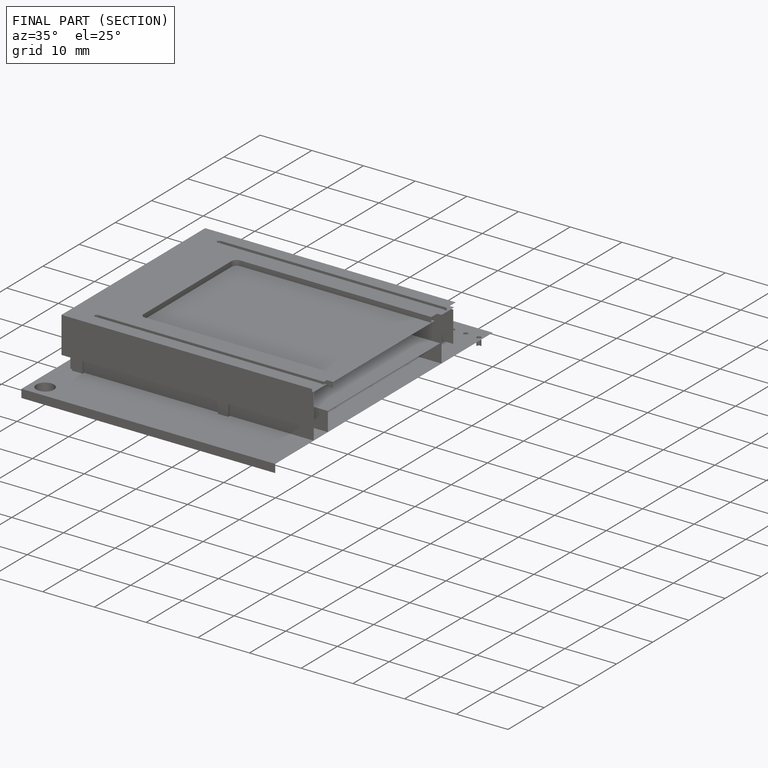
[diagram: finished part — half-section view (interior)]
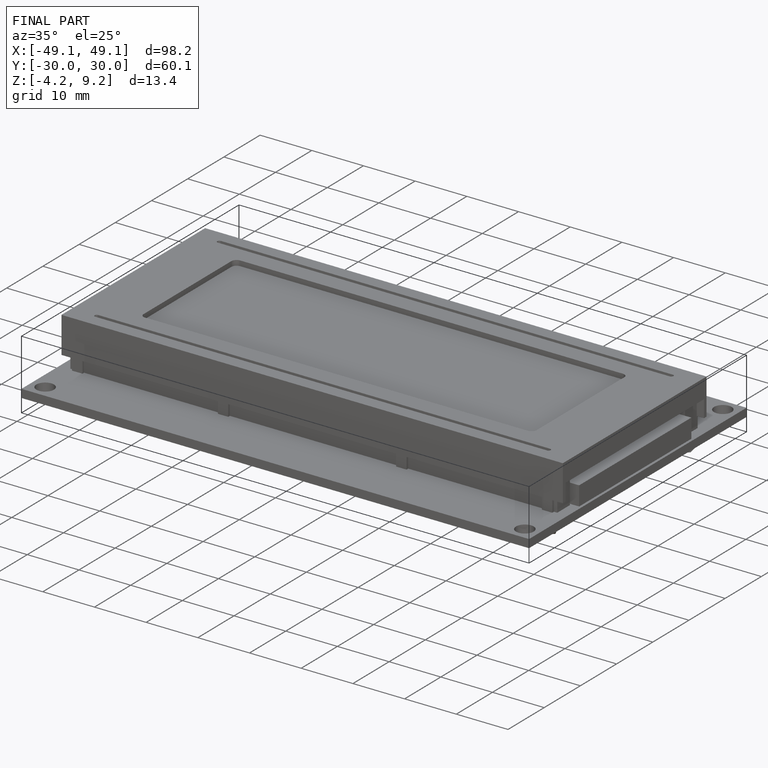
[diagram: finished part — iso view with bounding-box wireframe]
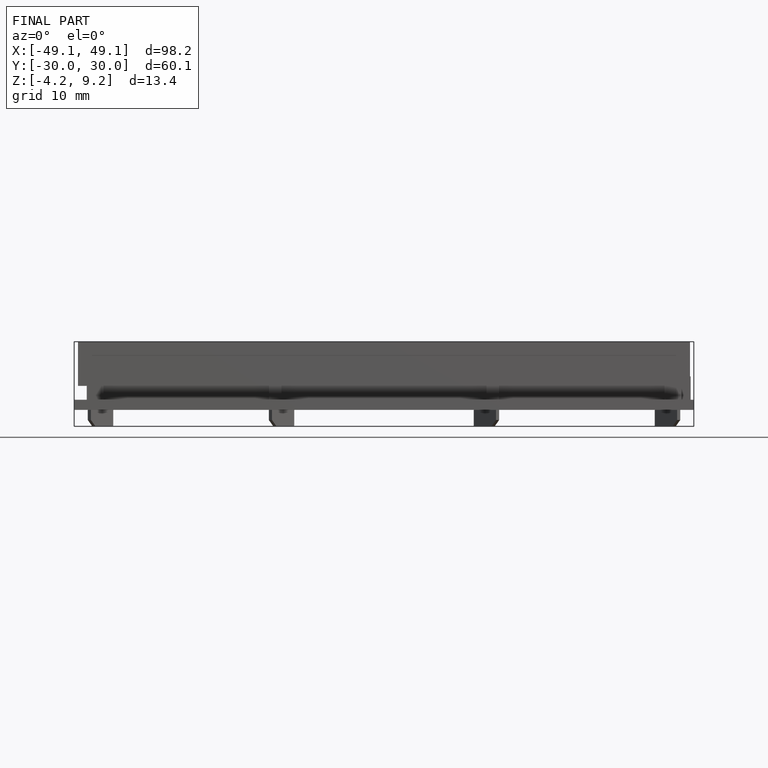
[diagram: finished part — front view with bounding-box wireframe]
